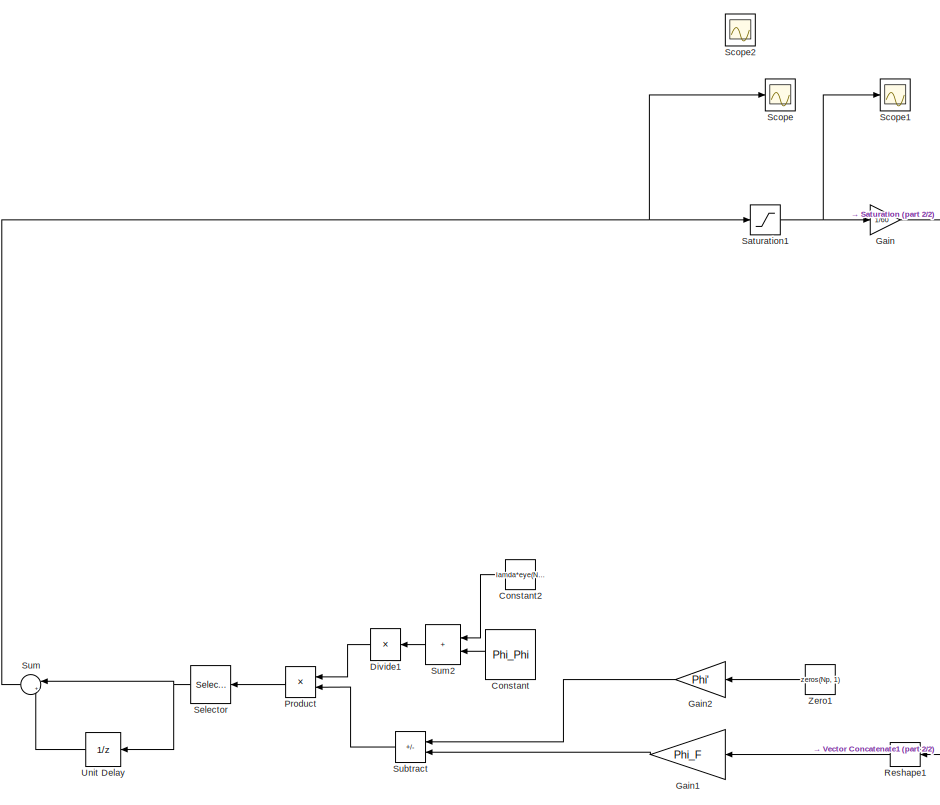
[diagram: root canvas - part 1/2, left side, full height]
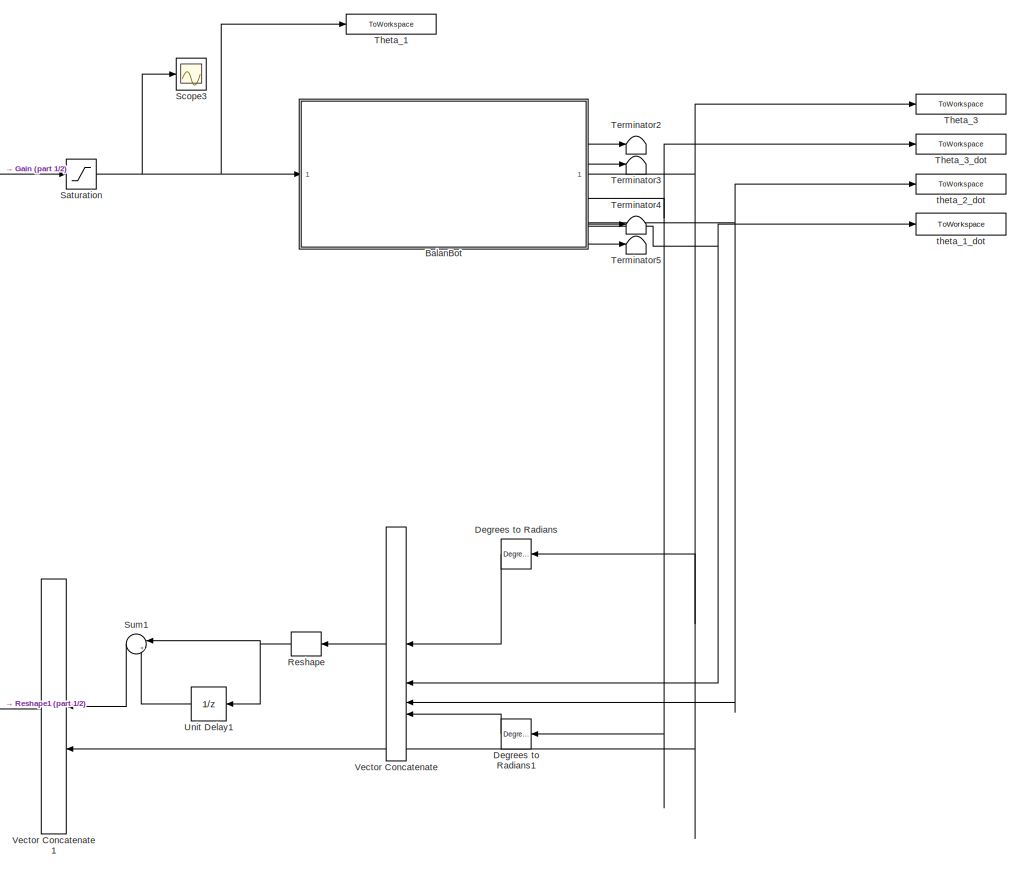
[diagram: root canvas - part 2/2, right side, full height]
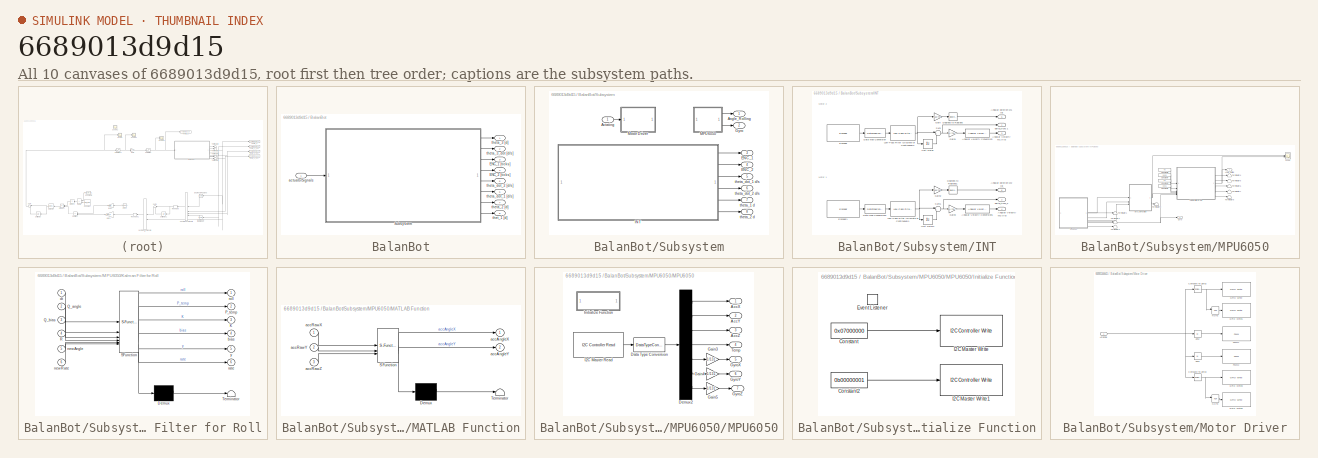
[diagram: thumbnail index - all 10 canvases of the model, root first then tree order]
MODEL slx_6689013d9d15
KIND model
CONFIG AbsTol = auto
CONFIG EnableMultiTasking = on
CONFIG FixedStep = Ts
CONFIG MaxStep = auto
CONFIG MinStep = auto
CONFIG RelTol = 1e-3
CONFIG SampleTimeConstraint = Unconstrained
CONFIG SolverName = FixedStepAuto
CONFIG StartTime = 0.0
CONFIG StopTime = inf
BLOCK [SubSystem] BalanBot
BLOCK [Outport] BalanBot/ENC_1 [ticks]
  Port = 3
BLOCK [Outport] BalanBot/ENC_2 [ticks]
  Port = 4
BLOCK [SubSystem] BalanBot/Subsystem
  VariantControl = plantModel==2
BLOCK [Inport] BalanBot/Subsystem/Actating
BLOCK [Outport] BalanBot/Subsystem/Angle_Rolling
BLOCK [Outport] BalanBot/Subsystem/ENC_1
  Port = 3
BLOCK [Outport] BalanBot/Subsystem/ENC_2
  Port = 4
BLOCK [Outport] BalanBot/Subsystem/Gyro
  Port = 2
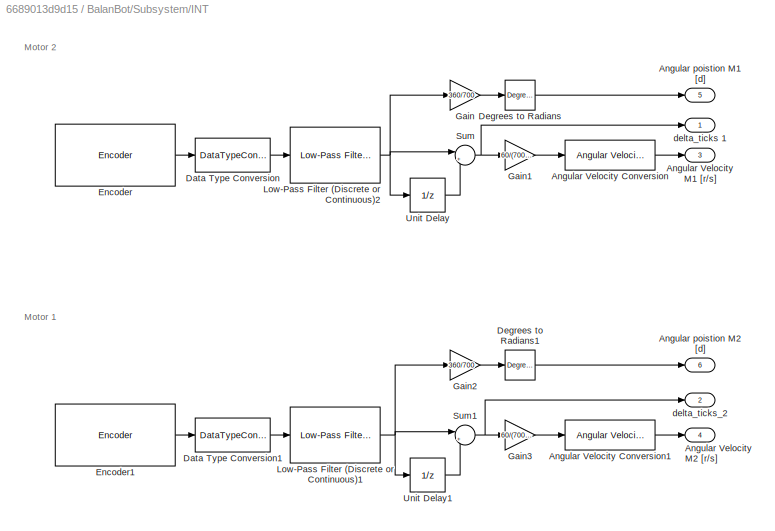
BLOCK [SubSystem] BalanBot/Subsystem/INT
BLOCK [Reference] BalanBot/Subsystem/INT/Angular Velocity Conversion  REF=aerolibconvert2/Angular Velocity
Conversion
  SourceBlock = aerolibconvert2/Angular Velocity\nConversion
  SourceType = Angular Velocity Conversion
BLOCK [Reference] BalanBot/Subsystem/INT/Angular Velocity Conversion1  REF=aerolibconvert2/Angular Velocity
Conversion
  SourceBlock = aerolibconvert2/Angular Velocity\nConversion
  SourceType = Angular Velocity Conversion
BLOCK [Outport] BalanBot/Subsystem/INT/Angular Velocity M1 [r//s]
  Port = 3
BLOCK [Outport] BalanBot/Subsystem/INT/Angular Velocity M2 [r//s]
  Port = 4
BLOCK [Outport] BalanBot/Subsystem/INT/Angular poistion M1 [d]
  Port = 5
BLOCK [Outport] BalanBot/Subsystem/INT/Angular poistion M2 [d]
  Port = 6
BLOCK [DataTypeConversion] BalanBot/Subsystem/INT/Data Type Conversion
  OutDataTypeStr = double
  RndMeth = Floor
  SaturateOnIntegerOverflow = off
BLOCK [DataTypeConversion] BalanBot/Subsystem/INT/Data Type Conversion1
  OutDataTypeStr = double
  RndMeth = Floor
  SaturateOnIntegerOverflow = off
BLOCK [Reference] BalanBot/Subsystem/INT/Degrees to Radians  REF=simulink_extras/Transformations/Degrees to
Radians
  SourceBlock = simulink_extras/Transformations/Degrees to\nRadians
  SourceType = DegreesToRadians
BLOCK [Reference] BalanBot/Subsystem/INT/Degrees to Radians1  REF=simulink_extras/Transformations/Degrees to
Radians
  SourceBlock = simulink_extras/Transformations/Degrees to\nRadians
  SourceType = DegreesToRadians
BLOCK [Reference] BalanBot/Subsystem/INT/Encoder  REF=raspberrypiBasiclib/Encoder
  SourceBlock = raspberrypiBasiclib/Encoder
  SourceType = codertarget.raspi.internal.RotaryEncoder
BLOCK [Reference] BalanBot/Subsystem/INT/Encoder1  REF=raspberrypiBasiclib/Encoder
  SourceBlock = raspberrypiBasiclib/Encoder
  SourceType = codertarget.raspi.internal.RotaryEncoder
BLOCK [Gain] BalanBot/Subsystem/INT/Gain
  Gain = 360/700
BLOCK [Gain] BalanBot/Subsystem/INT/Gain1
  Gain = 60/(700*Ts)
BLOCK [Gain] BalanBot/Subsystem/INT/Gain2
  Gain = 360/700
BLOCK [Gain] BalanBot/Subsystem/INT/Gain3
  Gain = 60/(700*Ts)
BLOCK [Reference] BalanBot/Subsystem/INT/Low-Pass Filter (Discrete or Continuous)1  REF=eeGeneralControl/Low-Pass Filter
(Discrete or Continuous)
  SourceBlock = eeGeneralControl/Low-Pass Filter\n(Discrete or Continuous)
  SourceType = Low-Pass Filter (Discrete or Continuous)
BLOCK [Reference] BalanBot/Subsystem/INT/Low-Pass Filter (Discrete or Continuous)2  REF=eeGeneralControl/Low-Pass Filter
(Discrete or Continuous)
  SourceBlock = eeGeneralControl/Low-Pass Filter\n(Discrete or Continuous)
  SourceType = Low-Pass Filter (Discrete or Continuous)
BLOCK [Sum] BalanBot/Subsystem/INT/Sum
  Inputs = |+-
BLOCK [Sum] BalanBot/Subsystem/INT/Sum1
  Inputs = |+-
BLOCK [UnitDelay] BalanBot/Subsystem/INT/Unit Delay
  HasFrameUpgradeWarning = on
  SampleTime = -1
BLOCK [UnitDelay] BalanBot/Subsystem/INT/Unit Delay1
  HasFrameUpgradeWarning = on
  SampleTime = -1
BLOCK [Outport] BalanBot/Subsystem/INT/delta_ticks 1
BLOCK [Outport] BalanBot/Subsystem/INT/delta_ticks_2
  Port = 2
BLOCK [SubSystem] BalanBot/Subsystem/MPU6050
BLOCK [Outport] BalanBot/Subsystem/MPU6050/Angle_Rolling
BLOCK [Constant] BalanBot/Subsystem/MPU6050/Constant1
  Value = 0.1
BLOCK [Constant] BalanBot/Subsystem/MPU6050/Constant6
  Value = 0.001
BLOCK [Constant] BalanBot/Subsystem/MPU6050/Constant7
  Value = 0.005
BLOCK [Constant] BalanBot/Subsystem/MPU6050/Constant8
  Value = Ts
BLOCK [Outport] BalanBot/Subsystem/MPU6050/Gyro
  Port = 2
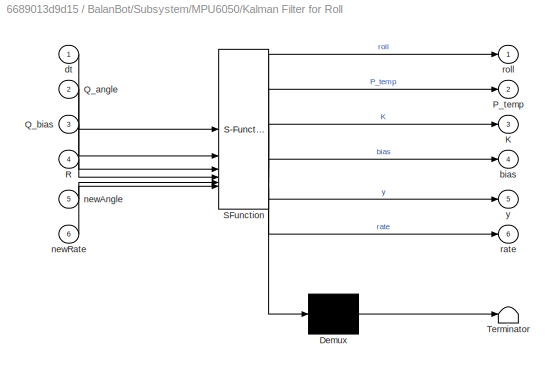
BLOCK [SubSystem] BalanBot/Subsystem/MPU6050/Kalman Filter for Roll
  ErrorFcn = Stateflow.Translate.translate
  PermitHierarchicalResolution = ExplicitOnly
  SFBlockType = MATLAB Function
  TreatAsAtomicUnit = on
BLOCK [Demux] BalanBot/Subsystem/MPU6050/Kalman Filter for Roll/ Demux 
  Outputs = 1
BLOCK [S-Function] BalanBot/Subsystem/MPU6050/Kalman Filter for Roll/ SFunction 
  EnableBusSupport = on
  FunctionName = sf_sfun
  PortCounts = [6 7]
  SFcnIsStateOwnerBlock = off
  SFunctionDeploymentMode = off
  Tag = Stateflow S-Function 6
BLOCK [Terminator] BalanBot/Subsystem/MPU6050/Kalman Filter for Roll/ Terminator 
BLOCK [Outport] BalanBot/Subsystem/MPU6050/Kalman Filter for Roll/K
  Port = 3
BLOCK [Outport] BalanBot/Subsystem/MPU6050/Kalman Filter for Roll/P_temp
  Port = 2
BLOCK [Inport] BalanBot/Subsystem/MPU6050/Kalman Filter for Roll/Q_angle
  Port = 2
BLOCK [Inport] BalanBot/Subsystem/MPU6050/Kalman Filter for Roll/Q_bias
  Port = 3
BLOCK [Inport] BalanBot/Subsystem/MPU6050/Kalman Filter for Roll/R
  Port = 4
BLOCK [Outport] BalanBot/Subsystem/MPU6050/Kalman Filter for Roll/bias
  Port = 4
BLOCK [Inport] BalanBot/Subsystem/MPU6050/Kalman Filter for Roll/dt
BLOCK [Inport] BalanBot/Subsystem/MPU6050/Kalman Filter for Roll/newAngle
  Port = 5
BLOCK [Inport] BalanBot/Subsystem/MPU6050/Kalman Filter for Roll/newRate
  Port = 6
BLOCK [Outport] BalanBot/Subsystem/MPU6050/Kalman Filter for Roll/rate
  Port = 6
BLOCK [Outport] BalanBot/Subsystem/MPU6050/Kalman Filter for Roll/roll
BLOCK [Outport] BalanBot/Subsystem/MPU6050/Kalman Filter for Roll/y
  Port = 5
BLOCK [SubSystem] BalanBot/Subsystem/MPU6050/MATLAB Function
  ErrorFcn = Stateflow.Translate.translate
  PermitHierarchicalResolution = ExplicitOnly
  SFBlockType = MATLAB Function
  TreatAsAtomicUnit = on
BLOCK [Demux] BalanBot/Subsystem/MPU6050/MATLAB Function/ Demux 
  Outputs = 1
BLOCK [S-Function] BalanBot/Subsystem/MPU6050/MATLAB Function/ SFunction 
  EnableBusSupport = on
  FunctionName = sf_sfun
  PortCounts = [3 3]
  SFcnIsStateOwnerBlock = off
  SFunctionDeploymentMode = off
  Tag = Stateflow S-Function 5
BLOCK [Terminator] BalanBot/Subsystem/MPU6050/MATLAB Function/ Terminator 
BLOCK [Outport] BalanBot/Subsystem/MPU6050/MATLAB Function/accAngleX
BLOCK [Outport] BalanBot/Subsystem/MPU6050/MATLAB Function/accAngleY
  Port = 2
BLOCK [Inport] BalanBot/Subsystem/MPU6050/MATLAB Function/accRawX
BLOCK [Inport] BalanBot/Subsystem/MPU6050/MATLAB Function/accRawY
  Port = 2
BLOCK [Inport] BalanBot/Subsystem/MPU6050/MATLAB Function/accRawZ
  Port = 3
BLOCK [SubSystem] BalanBot/Subsystem/MPU6050/MPU6050
  TreatAsAtomicUnit = on
BLOCK [Outport] BalanBot/Subsystem/MPU6050/MPU6050/AccX
BLOCK [Outport] BalanBot/Subsystem/MPU6050/MPU6050/AccY
  Port = 2
BLOCK [Outport] BalanBot/Subsystem/MPU6050/MPU6050/AccZ
  Port = 3
BLOCK [DataTypeConversion] BalanBot/Subsystem/MPU6050/MPU6050/Data Type Conversion
  OutDataTypeStr = double
  RndMeth = Floor
  SaturateOnIntegerOverflow = off
BLOCK [Demux] BalanBot/Subsystem/MPU6050/MPU6050/Demux2
  Outputs = 7
BLOCK [Gain] BalanBot/Subsystem/MPU6050/MPU6050/Gain3
  Gain = 1/131
BLOCK [Gain] BalanBot/Subsystem/MPU6050/MPU6050/Gain4
  Gain = 1/131
BLOCK [Gain] BalanBot/Subsystem/MPU6050/MPU6050/Gain5
  Gain = 1/131
BLOCK [Outport] BalanBot/Subsystem/MPU6050/MPU6050/GyroX
  Port = 5
BLOCK [Outport] BalanBot/Subsystem/MPU6050/MPU6050/GyroY
  Port = 6
BLOCK [Outport] BalanBot/Subsystem/MPU6050/MPU6050/GyroZ
  Port = 7
BLOCK [Reference] BalanBot/Subsystem/MPU6050/MPU6050/I2C Master Read  REF=raspberrypiCommlib/I2C Controller Read
  SourceBlock = raspberrypiCommlib/I2C Controller Read
  SourceType = codertarget.raspi.internal.I2CMasterRead
BLOCK [SubSystem] BalanBot/Subsystem/MPU6050/MPU6050/Initialize Function
  TreatAsAtomicUnit = on
BLOCK [Constant] BalanBot/Subsystem/MPU6050/MPU6050/Initialize Function/Constant
  SampleTime = -1
  Value = 0x07000000
BLOCK [Constant] BalanBot/Subsystem/MPU6050/MPU6050/Initialize Function/Constant2
  SampleTime = -1
  Value = 0b00000001
BLOCK [EventListener] BalanBot/Subsystem/MPU6050/MPU6050/Initialize Function/Event Listener
  DisableCoverage = on
  EventName = reset
BLOCK [Reference] BalanBot/Subsystem/MPU6050/MPU6050/Initialize Function/I2C Master Write  REF=raspberrypiCommlib/I2C Controller Write
  SourceBlock = raspberrypiCommlib/I2C Controller Write
  SourceType = codertarget.raspi.internal.I2CMasterWrite
BLOCK [Reference] BalanBot/Subsystem/MPU6050/MPU6050/Initialize Function/I2C Master Write1  REF=raspberrypiCommlib/I2C Controller Write
  SourceBlock = raspberrypiCommlib/I2C Controller Write
  SourceType = codertarget.raspi.internal.I2CMasterWrite
BLOCK [Outport] BalanBot/Subsystem/MPU6050/MPU6050/Temp
  Port = 4
BLOCK [Scope] BalanBot/Subsystem/MPU6050/Scope
  Floating = off
  NumInputPorts = 2
  ScopeSpecificationString = Simulink.scopes.TimeScopeBlockCfg('CurrentConfiguration', extmgr.ConfigurationSet(extmgr.Configuration('Core','General UI',true),extmgr.Configuration('Core','Source UI',true),extmgr.Configuration('Sources','WiredSimulink',true,'DataLoggingVariableName','ScopeData1'),extmgr.Configuration('Visuals','Time Domain',true,'SerializedDisplays',{struct('MinYLimReal','-0.28304','MaxYLimReal','-0.10455','YLa...<+1447ch>
BLOCK [Terminator] BalanBot/Subsystem/MPU6050/Terminator1
BLOCK [Terminator] BalanBot/Subsystem/MPU6050/Terminator2
BLOCK [Terminator] BalanBot/Subsystem/MPU6050/Terminator3
BLOCK [Terminator] BalanBot/Subsystem/MPU6050/Terminator4
BLOCK [Terminator] BalanBot/Subsystem/MPU6050/Terminator5
BLOCK [Terminator] BalanBot/Subsystem/MPU6050/Terminator6
BLOCK [Terminator] BalanBot/Subsystem/MPU6050/Terminator7
BLOCK [Terminator] BalanBot/Subsystem/MPU6050/Terminator8
BLOCK [Terminator] BalanBot/Subsystem/MPU6050/Terminator9
BLOCK [SubSystem] BalanBot/Subsystem/Motor Driver
BLOCK [Abs] BalanBot/Subsystem/Motor Driver/Abs2
  SaturateOnIntegerOverflow = off
BLOCK [Abs] BalanBot/Subsystem/Motor Driver/Abs3
  SaturateOnIntegerOverflow = off
BLOCK [Inport] BalanBot/Subsystem/Motor Driver/Actating
BLOCK [Reference] BalanBot/Subsystem/Motor Driver/Compare To Zero2  REF=simulink/Logic and Bit
Operations/Compare
To Zero
  SourceBlock = simulink/Logic and Bit\nOperations/Compare\nTo Zero
  SourceType = Compare To Zero
BLOCK [Reference] BalanBot/Subsystem/Motor Driver/Compare To Zero3  REF=simulink/Logic and Bit
Operations/Compare
To Zero
  SourceBlock = simulink/Logic and Bit\nOperations/Compare\nTo Zero
  SourceType = Compare To Zero
BLOCK [Reference] BalanBot/Subsystem/Motor Driver/GPIO Write  REF=raspberrypiBasiclib/GPIO Write
  SourceBlock = raspberrypiBasiclib/GPIO Write
  SourceType = GPIO Write
BLOCK [Reference] BalanBot/Subsystem/Motor Driver/GPIO Write1  REF=raspberrypiBasiclib/GPIO Write
  SourceBlock = raspberrypiBasiclib/GPIO Write
  SourceType = GPIO Write
BLOCK [Reference] BalanBot/Subsystem/Motor Driver/GPIO Write2  REF=raspberrypiBasiclib/GPIO Write
  SourceBlock = raspberrypiBasiclib/GPIO Write
  SourceType = GPIO Write
BLOCK [Reference] BalanBot/Subsystem/Motor Driver/GPIO Write3  REF=raspberrypiBasiclib/GPIO Write
  SourceBlock = raspberrypiBasiclib/GPIO Write
  SourceType = GPIO Write
BLOCK [Logic] BalanBot/Subsystem/Motor Driver/NOT2
  AllPortsSameDT = off
  IconShape = distinctive
  Operator = NOT
  OutDataTypeStr = boolean
BLOCK [Logic] BalanBot/Subsystem/Motor Driver/NOT3
  AllPortsSameDT = off
  IconShape = distinctive
  Operator = NOT
  OutDataTypeStr = boolean
BLOCK [Reference] BalanBot/Subsystem/Motor Driver/PWM1  REF=raspberrypiBasiclib/PWM
  SourceBlock = raspberrypiBasiclib/PWM
  SourceType = raspi.internal.PWMBlock
BLOCK [Reference] BalanBot/Subsystem/Motor Driver/PWM2  REF=raspberrypiBasiclib/PWM
  SourceBlock = raspberrypiBasiclib/PWM
  SourceType = raspi.internal.PWMBlock
BLOCK [Outport] BalanBot/Subsystem/theta_1 d
  Port = 7
BLOCK [Outport] BalanBot/Subsystem/theta_2 d
  Port = 8
BLOCK [Outport] BalanBot/Subsystem/theta_dot_1 d//s
  Port = 5
BLOCK [Outport] BalanBot/Subsystem/theta_dot_2 d//s
  Port = 6
BLOCK [Inport] BalanBot/actuatorSignals
BLOCK [Outport] BalanBot/thet_1 [d]
  Port = 8
BLOCK [Outport] BalanBot/theta_2 [d]
  Port = 7
BLOCK [Outport] BalanBot/theta_3 [d]
BLOCK [Outport] BalanBot/theta_3_dot [d//s]
  Port = 2
BLOCK [Outport] BalanBot/theta_dot_1 [d//s]
  Port = 6
BLOCK [Outport] BalanBot/theta_dot_2 [d//s]
  Port = 5
BLOCK [Constant] Constant
  NameLocation = top
  SampleTime = -1
  Value = Phi_Phi
BLOCK [Constant] Constant2
  NameLocation = top
  SampleTime = -1
  Value = lamda*eye(Nc, Nc)
BLOCK [Reference] Degrees to Radians  REF=simulink_extras/Transformations/Degrees to
Radians
  NameLocation = top
  SourceBlock = simulink_extras/Transformations/Degrees to\nRadians
  SourceType = DegreesToRadians
BLOCK [Reference] Degrees to Radians1  REF=simulink_extras/Transformations/Degrees to
Radians
  NameLocation = top
  SourceBlock = simulink_extras/Transformations/Degrees to\nRadians
  SourceType = DegreesToRadians
BLOCK [Product] Divide1
  Inputs = /
  NameLocation = top
BLOCK [Gain] Gain
  Gain = 1/60
BLOCK [Gain] Gain1
  Gain = Phi_F
  Multiplication = Matrix(K*u)
  NameLocation = top
BLOCK [Gain] Gain2
  Gain = Phi'
  Multiplication = Matrix(K*u)
  NameLocation = top
BLOCK [Product] Product
  NameLocation = top
BLOCK [Reshape] Reshape
  NameLocation = top
  OutputDimensionality = Column vector (2-D)
  OutputDimensions = [5,1]
BLOCK [Reshape] Reshape1
  NameLocation = top
  OutputDimensionality = Column vector (2-D)
  OutputDimensions = [5,1]
BLOCK [Saturate] Saturation
  LowerLimit = -1
  UpperLimit = 1
BLOCK [Saturate] Saturation1
  LowerLimit = -200
  UpperLimit = 200
BLOCK [Scope] Scope
  Floating = off
  NumInputPorts = 1
  ScopeSpecificationString = Simulink.scopes.TimeScopeBlockCfg('CurrentConfiguration', extmgr.ConfigurationSet(extmgr.Configuration('Core','General UI',true),extmgr.Configuration('Core','Source UI',true),extmgr.Configuration('Sources','WiredSimulink',true,'DataLoggingVariableName','ScopeData1'),extmgr.Configuration('Visuals','Time Domain',true,'SerializedDisplays',{struct('MinYLimReal','-175.43021','MaxYLimReal','184.50397','...<+1520ch>
BLOCK [Scope] Scope1
  Floating = off
  NumInputPorts = 1
  ScopeSpecificationString = Simulink.scopes.TimeScopeBlockCfg('CurrentConfiguration', extmgr.ConfigurationSet(extmgr.Configuration('Core','General UI',true),extmgr.Configuration('Core','Source UI',true),extmgr.Configuration('Sources','WiredSimulink',true,'DataLoggingVariableName','ScopeData1'),extmgr.Configuration('Visuals','Time Domain',true,'SerializedDisplays',{struct('MinYLimReal','-242.81304','MaxYLimReal','223.81573','...<+1498ch>
BLOCK [Scope] Scope2
  Floating = off
  IOType = viewer
  NumInputPorts = 1
  ScopeSpecificationString = Simulink.scopes.TimeScopeBlockCfg('CurrentConfiguration', extmgr.ConfigurationSet(extmgr.Configuration('Core','General UI',true),extmgr.Configuration('Core','Source UI',true),extmgr.Configuration('Sources','WiredSimulink',true,'DataLoggingVariableName','ScopeData4'),extmgr.Configuration('Visuals','Time Domain',true,'SerializedDisplays',{struct('MinYLimReal','-3.92317','MaxYLimReal','3.92637','YLab...<+1359ch>
BLOCK [Scope] Scope3
  Floating = off
  NumInputPorts = 1
  ScopeSpecificationString = Simulink.scopes.TimeScopeBlockCfg('CurrentConfiguration', extmgr.ConfigurationSet(extmgr.Configuration('Core','General UI',true),extmgr.Configuration('Core','Source UI',true),extmgr.Configuration('Sources','WiredSimulink',true,'DataLoggingVariableName','ScopeData2'),extmgr.Configuration('Visuals','Time Domain',true,'SerializedDisplays',{struct('MinYLimReal','-1.25','MaxYLimReal','1.25','YLabelReal...<+1465ch>
BLOCK [Selector] Selector
  IndexOptions = Index vector (dialog)
  Indices = 1
  InputPortWidth = Nc
  NameLocation = top
  OutputSizes = 1
BLOCK [Sum] Subtract
  IconShape = rectangular
  Inputs = +-
  NameLocation = top
BLOCK [Sum] Sum
  Inputs = |++
  NameLocation = top
BLOCK [Sum] Sum1
  Inputs = |+-
  NameLocation = top
BLOCK [Sum] Sum2
  IconShape = rectangular
  NameLocation = top
BLOCK [Terminator] Terminator2
BLOCK [Terminator] Terminator3
BLOCK [Terminator] Terminator4
BLOCK [Terminator] Terminator5
BLOCK [ToWorkspace] Theta_1
  FixptAsFi = on
  MaxDataPoints = inf
  SampleTime = Ts
  SaveFormat = Timeseries
  VariableName = pwm
BLOCK [ToWorkspace] Theta_3
  FixptAsFi = on
  MaxDataPoints = inf
  SampleTime = Ts
  SaveFormat = Timeseries
  VariableName = theta_3
BLOCK [ToWorkspace] Theta_3_dot
  FixptAsFi = on
  MaxDataPoints = inf
  SampleTime = Ts
  SaveFormat = Timeseries
  VariableName = theta_3_dot
BLOCK [UnitDelay] Unit Delay
  HasFrameUpgradeWarning = on
  NameLocation = top
  SampleTime = -1
BLOCK [UnitDelay] Unit Delay1
  HasFrameUpgradeWarning = on
  NameLocation = top
  SampleTime = -1
BLOCK [Concatenate] Vector Concatenate
  NameLocation = top
  NumInputs = 4
BLOCK [Concatenate] Vector Concatenate1
  NameLocation = top
BLOCK [Constant] Zero1
  NameLocation = top
  OutDataTypeStr = Inherit: Inherit via back propagation
  Value = zeros(Np, 1)
BLOCK [ToWorkspace] theta_1_dot
  FixptAsFi = on
  MaxDataPoints = inf
  SampleTime = Ts
  SaveFormat = Timeseries
  VariableName = theta_1_dot
BLOCK [ToWorkspace] theta_2_dot
  FixptAsFi = on
  MaxDataPoints = inf
  SampleTime = Ts
  SaveFormat = Timeseries
  VariableName = theta_2_dot
ANNOTATION BalanBot/Subsystem/INT: Motor 1
ANNOTATION BalanBot/Subsystem/INT: Motor 2
LINE BalanBot/Subsystem/Actating:1 -> BalanBot/Subsystem/Motor Driver:1
LINE BalanBot/Subsystem/INT/Angular Velocity Conversion1:1 -> BalanBot/Subsystem/INT/Angular Velocity M2 [r//s]:1
LINE BalanBot/Subsystem/INT/Angular Velocity Conversion:1 -> BalanBot/Subsystem/INT/Angular Velocity M1 [r//s]:1
LINE BalanBot/Subsystem/INT/Data Type Conversion1:1 -> BalanBot/Subsystem/INT/Low-Pass Filter (Discrete or Continuous)1:1
LINE BalanBot/Subsystem/INT/Data Type Conversion:1 -> BalanBot/Subsystem/INT/Low-Pass Filter (Discrete or Continuous)2:1
LINE BalanBot/Subsystem/INT/Degrees to Radians1:1 -> BalanBot/Subsystem/INT/Angular poistion M2 [d]:1
LINE BalanBot/Subsystem/INT/Degrees to Radians:1 -> BalanBot/Subsystem/INT/Angular poistion M1 [d]:1
LINE BalanBot/Subsystem/INT/Encoder1:1 -> BalanBot/Subsystem/INT/Data Type Conversion1:1
LINE BalanBot/Subsystem/INT/Encoder:1 -> BalanBot/Subsystem/INT/Data Type Conversion:1
LINE BalanBot/Subsystem/INT/Gain1:1 -> BalanBot/Subsystem/INT/Angular Velocity Conversion:1
LINE BalanBot/Subsystem/INT/Gain2:1 -> BalanBot/Subsystem/INT/Degrees to Radians1:1
LINE BalanBot/Subsystem/INT/Gain3:1 -> BalanBot/Subsystem/INT/Angular Velocity Conversion1:1
LINE BalanBot/Subsystem/INT/Gain:1 -> BalanBot/Subsystem/INT/Degrees to Radians:1
NET BalanBot/Subsystem/INT/Low-Pass Filter (Discrete or Continuous)1:1 -> BalanBot/Subsystem/INT/Gain2:1, BalanBot/Subsystem/INT/Sum1:1, BalanBot/Subsystem/INT/Unit Delay1:1
NET BalanBot/Subsystem/INT/Low-Pass Filter (Discrete or Continuous)2:1 -> BalanBot/Subsystem/INT/Gain:1, BalanBot/Subsystem/INT/Sum:1, BalanBot/Subsystem/INT/Unit Delay:1
NET BalanBot/Subsystem/INT/Sum1:1 -> BalanBot/Subsystem/INT/Gain3:1, BalanBot/Subsystem/INT/delta_ticks_2:1
NET BalanBot/Subsystem/INT/Sum:1 -> BalanBot/Subsystem/INT/Gain1:1, BalanBot/Subsystem/INT/delta_ticks 1:1
LINE BalanBot/Subsystem/INT/Unit Delay1:1 -> BalanBot/Subsystem/INT/Sum1:2
LINE BalanBot/Subsystem/INT/Unit Delay:1 -> BalanBot/Subsystem/INT/Sum:2
LINE BalanBot/Subsystem/INT:1 -> BalanBot/Subsystem/ENC_1:1
LINE BalanBot/Subsystem/INT:2 -> BalanBot/Subsystem/ENC_2:1
LINE BalanBot/Subsystem/INT:3 -> BalanBot/Subsystem/theta_dot_1 d//s:1
LINE BalanBot/Subsystem/INT:4 -> BalanBot/Subsystem/theta_dot_2 d//s:1
LINE BalanBot/Subsystem/INT:5 -> BalanBot/Subsystem/theta_1 d:1
LINE BalanBot/Subsystem/INT:6 -> BalanBot/Subsystem/theta_2 d:1
LINE BalanBot/Subsystem/MPU6050/Constant1:1 -> BalanBot/Subsystem/MPU6050/Kalman Filter for Roll:3
LINE BalanBot/Subsystem/MPU6050/Constant6:1 -> BalanBot/Subsystem/MPU6050/Kalman Filter for Roll:4
LINE BalanBot/Subsystem/MPU6050/Constant7:1 -> BalanBot/Subsystem/MPU6050/Kalman Filter for Roll:2
LINE BalanBot/Subsystem/MPU6050/Constant8:1 -> BalanBot/Subsystem/MPU6050/Kalman Filter for Roll:1
NET BalanBot/Subsystem/MPU6050/Kalman Filter for Roll:1 -> BalanBot/Subsystem/MPU6050/Angle_Rolling:1, BalanBot/Subsystem/MPU6050/Scope:2
LINE BalanBot/Subsystem/MPU6050/Kalman Filter for Roll:2 -> BalanBot/Subsystem/MPU6050/Terminator4:1
LINE BalanBot/Subsystem/MPU6050/Kalman Filter for Roll:3 -> BalanBot/Subsystem/MPU6050/Terminator5:1
LINE BalanBot/Subsystem/MPU6050/Kalman Filter for Roll:4 -> BalanBot/Subsystem/MPU6050/Terminator6:1
LINE BalanBot/Subsystem/MPU6050/Kalman Filter for Roll:5 -> BalanBot/Subsystem/MPU6050/Terminator7:1
LINE BalanBot/Subsystem/MPU6050/Kalman Filter for Roll:6 -> BalanBot/Subsystem/MPU6050/Terminator8:1
NET BalanBot/Subsystem/MPU6050/MATLAB Function:1 -> BalanBot/Subsystem/MPU6050/Kalman Filter for Roll:5, BalanBot/Subsystem/MPU6050/Scope:1
LINE BalanBot/Subsystem/MPU6050/MATLAB Function:2 -> BalanBot/Subsystem/MPU6050/Terminator9:1
LINE BalanBot/Subsystem/MPU6050/MPU6050/Data Type Conversion:1 -> BalanBot/Subsystem/MPU6050/MPU6050/Demux2:1
LINE BalanBot/Subsystem/MPU6050/MPU6050/Demux2:1 -> BalanBot/Subsystem/MPU6050/MPU6050/AccX:1
LINE BalanBot/Subsystem/MPU6050/MPU6050/Demux2:2 -> BalanBot/Subsystem/MPU6050/MPU6050/AccY:1
LINE BalanBot/Subsystem/MPU6050/MPU6050/Demux2:3 -> BalanBot/Subsystem/MPU6050/MPU6050/AccZ:1
LINE BalanBot/Subsystem/MPU6050/MPU6050/Demux2:4 -> BalanBot/Subsystem/MPU6050/MPU6050/Temp:1
LINE BalanBot/Subsystem/MPU6050/MPU6050/Demux2:5 -> BalanBot/Subsystem/MPU6050/MPU6050/Gain3:1
LINE BalanBot/Subsystem/MPU6050/MPU6050/Demux2:6 -> BalanBot/Subsystem/MPU6050/MPU6050/Gain4:1
LINE BalanBot/Subsystem/MPU6050/MPU6050/Demux2:7 -> BalanBot/Subsystem/MPU6050/MPU6050/Gain5:1
LINE BalanBot/Subsystem/MPU6050/MPU6050/Gain3:1 -> BalanBot/Subsystem/MPU6050/MPU6050/GyroX:1
LINE BalanBot/Subsystem/MPU6050/MPU6050/Gain4:1 -> BalanBot/Subsystem/MPU6050/MPU6050/GyroY:1
LINE BalanBot/Subsystem/MPU6050/MPU6050/Gain5:1 -> BalanBot/Subsystem/MPU6050/MPU6050/GyroZ:1
LINE BalanBot/Subsystem/MPU6050/MPU6050/I2C Master Read:1 -> BalanBot/Subsystem/MPU6050/MPU6050/Data Type Conversion:1
LINE BalanBot/Subsystem/MPU6050/MPU6050/Initialize Function/Constant2:1 -> BalanBot/Subsystem/MPU6050/MPU6050/Initialize Function/I2C Master Write1:1
LINE BalanBot/Subsystem/MPU6050/MPU6050/Initialize Function/Constant:1 -> BalanBot/Subsystem/MPU6050/MPU6050/Initialize Function/I2C Master Write:1
LINE BalanBot/Subsystem/MPU6050/MPU6050:1 -> BalanBot/Subsystem/MPU6050/MATLAB Function:1
LINE BalanBot/Subsystem/MPU6050/MPU6050:2 -> BalanBot/Subsystem/MPU6050/MATLAB Function:2
LINE BalanBot/Subsystem/MPU6050/MPU6050:3 -> BalanBot/Subsystem/MPU6050/MATLAB Function:3
LINE BalanBot/Subsystem/MPU6050/MPU6050:4 -> BalanBot/Subsystem/MPU6050/Terminator1:1
NET BalanBot/Subsystem/MPU6050/MPU6050:5 -> BalanBot/Subsystem/MPU6050/Gyro:1, BalanBot/Subsystem/MPU6050/Kalman Filter for Roll:6
LINE BalanBot/Subsystem/MPU6050/MPU6050:6 -> BalanBot/Subsystem/MPU6050/Terminator2:1
LINE BalanBot/Subsystem/MPU6050/MPU6050:7 -> BalanBot/Subsystem/MPU6050/Terminator3:1
LINE BalanBot/Subsystem/MPU6050:1 -> BalanBot/Subsystem/Angle_Rolling:1
LINE BalanBot/Subsystem/MPU6050:2 -> BalanBot/Subsystem/Gyro:1
LINE BalanBot/Subsystem/Motor Driver/Abs2:1 -> BalanBot/Subsystem/Motor Driver/PWM1:1
LINE BalanBot/Subsystem/Motor Driver/Abs3:1 -> BalanBot/Subsystem/Motor Driver/PWM2:1
NET BalanBot/Subsystem/Motor Driver/Actating:1 -> BalanBot/Subsystem/Motor Driver/Abs2:1, BalanBot/Subsystem/Motor Driver/Abs3:1, BalanBot/Subsystem/Motor Driver/Compare To Zero2:1, BalanBot/Subsystem/Motor Driver/Compare To Zero3:1
NET BalanBot/Subsystem/Motor Driver/Compare To Zero2:1 -> BalanBot/Subsystem/Motor Driver/GPIO Write:1, BalanBot/Subsystem/Motor Driver/NOT2:1
NET BalanBot/Subsystem/Motor Driver/Compare To Zero3:1 -> BalanBot/Subsystem/Motor Driver/GPIO Write3:1, BalanBot/Subsystem/Motor Driver/NOT3:1
LINE BalanBot/Subsystem/Motor Driver/NOT2:1 -> BalanBot/Subsystem/Motor Driver/GPIO Write1:1
LINE BalanBot/Subsystem/Motor Driver/NOT3:1 -> BalanBot/Subsystem/Motor Driver/GPIO Write2:1
LINE BalanBot/Subsystem:1 -> BalanBot/theta_3 [d]:1
LINE BalanBot/Subsystem:2 -> BalanBot/theta_3_dot [d//s]:1
LINE BalanBot/Subsystem:3 -> BalanBot/ENC_1 [ticks]:1
LINE BalanBot/Subsystem:4 -> BalanBot/ENC_2 [ticks]:1
LINE BalanBot/Subsystem:5 -> BalanBot/theta_dot_2 [d//s]:1
LINE BalanBot/Subsystem:6 -> BalanBot/theta_dot_1 [d//s]:1
LINE BalanBot/Subsystem:7 -> BalanBot/theta_2 [d]:1
LINE BalanBot/Subsystem:8 -> BalanBot/thet_1 [d]:1
LINE BalanBot/actuatorSignals:1 -> BalanBot/Subsystem:1
NET BalanBot:1 -> Degrees to Radians:1, Theta_3:1, Vector Concatenate1:2
NET BalanBot:2 -> Degrees to Radians1:1, Theta_3_dot:1
LINE BalanBot:3 -> Terminator2:1
LINE BalanBot:4 -> Terminator3:1
NET BalanBot:5 -> Vector Concatenate:3, theta_2_dot:1
NET BalanBot:6 -> Vector Concatenate:2, theta_1_dot:1
LINE BalanBot:7 -> Terminator4:1
LINE BalanBot:8 -> Terminator5:1
LINE Constant2:1 -> Sum2:1
LINE Constant:1 -> Sum2:2
LINE Degrees to Radians1:1 -> Vector Concatenate:4
LINE Degrees to Radians:1 -> Vector Concatenate:1
LINE Divide1:1 -> Product:1
LINE Gain1:1 -> Subtract:2
LINE Gain2:1 -> Subtract:1
LINE Gain:1 -> Saturation:1
LINE Product:1 -> Selector:1
LINE Reshape1:1 -> Gain1:1
NET Reshape:1 -> Sum1:1, Unit Delay1:1
NET Saturation1:1 -> Gain:1, Scope1:1
NET Saturation:1 -> BalanBot:1, Scope3:1, Theta_1:1
NET Selector:1 -> Sum:1, Unit Delay:1
LINE Subtract:1 -> Product:2
LINE Sum1:1 -> Vector Concatenate1:1
LINE Sum2:1 -> Divide1:1
NET Sum:1 -> Saturation1:1, Scope:1
LINE Unit Delay1:1 -> Sum1:2
LINE Unit Delay:1 -> Sum:2
LINE Vector Concatenate1:1 -> Reshape1:1
LINE Vector Concatenate:1 -> Reshape:1
LINE Zero1:1 -> Gain2:1
note: NET lines group one-source signal fan-out (src -> all destinations, sorted); 1:1 wires keep LINE
CHART BalanBot/Subsystem/MPU6050/MATLAB Function states=1 transitions=1
  STATE_LABEL 'eML_blk_kernel()'
  STATE_LABEL 'SCRIPT:\nfunction [accAngleX, accAngleY] = fcn(accRawX, accRawY, accRawZ)\n\n%Converting the raw accel data from g values to accel about X and Y axis\n\naccAngleX = atand(accRawY/sqrt(power(accRawX,2) + power(accRawZ,2)));\naccAngleY = atand(-1*(accRawX/sqrt(power(accRawY,2) + power(accRawZ,2))));\n\nend \n'
CHART BalanBot/Subsystem/MPU6050/Kalman Filter for Roll states=1 transitions=1
  STATE_LABEL 'eML_blk_kernel()'
  STATE_LABEL 'SCRIPT:\nfunction [roll, P_temp, K, bias, y, rate]  = kalFilterRoll(dt, Q_angle, Q_bias, R, newAngle, newRate)\n\npersistent angle;\npersistent P;\n\n\n%Process Noise Convariance Matrix\nQ = [Q_angle 0; 0 Q_bias] * dt;\nF = [1  -dt; 0 1];\nH = [1 0];\nbias = 0.0;\n\nrate = newRate - bias;\n\nif isempty(angle)\n    angle = 0;\nelse\n    angle = angle + (dt * rate);\nend \n\nroll = angle;\n\nif isempty(P)\n    P = [0, 0; 0...<+241ch>'
CHART  states=0 transitions=0
CHART  states=0 transitions=0
